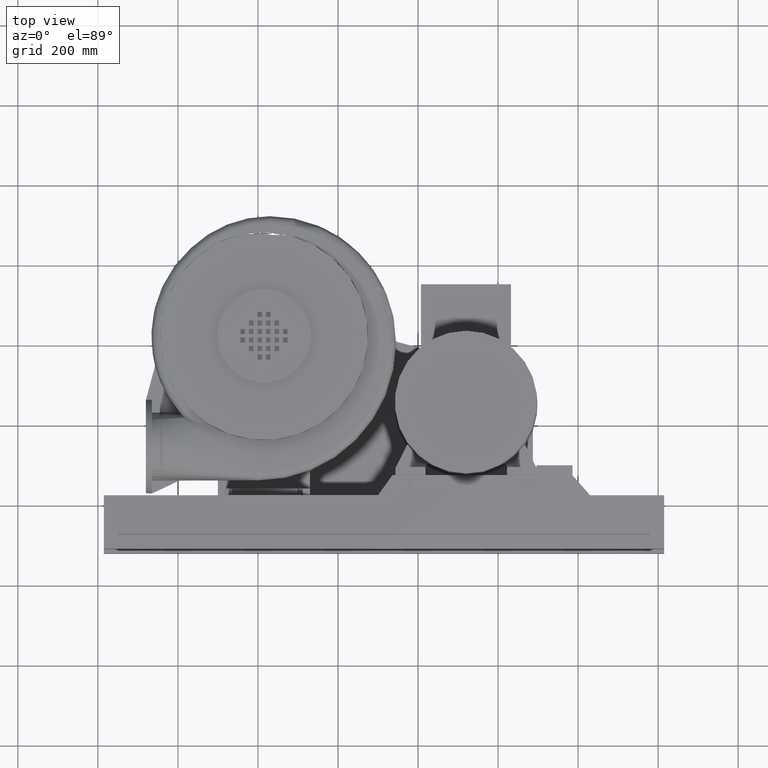
[diagram: clean part render]
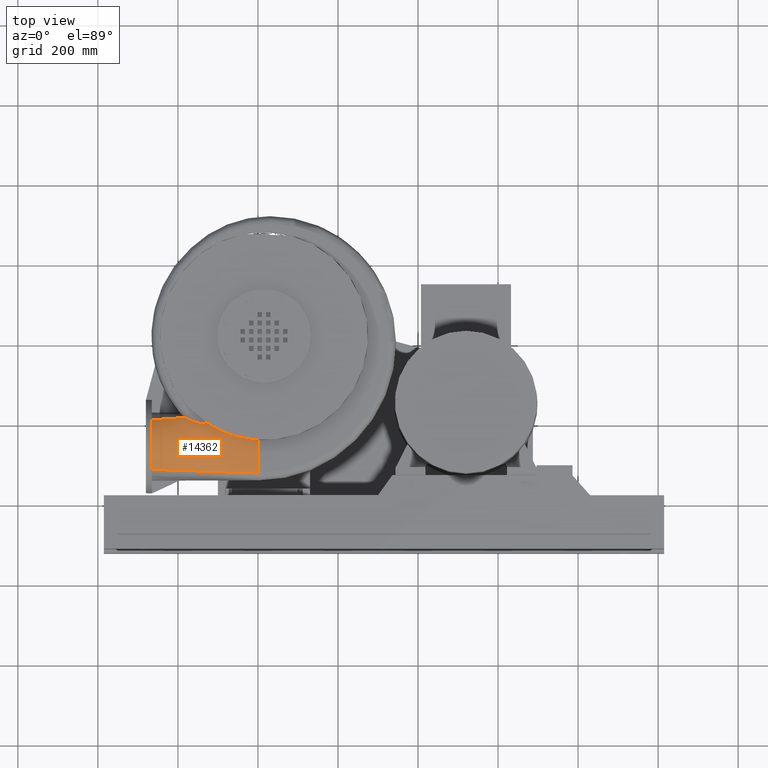
[diagram: same view with one face highlighted and labeled with its STEP entity id]
A machine part, top view. The second image highlights one B-rep face of the part: STEP entity #14362.
In plain terms, the highlighted face is a freeform B-spline surface patch.
Its self-contained STEP definition (entity closure, byte-faithful):
#13641=CARTESIAN_POINT('',(9.372842E-014,-327.00000000000017,67.500000000000043));
#13642=VERTEX_POINT('',#13641);
#13763=CARTESIAN_POINT('',(-182.29518174591624,-188.16894662575038,58.033999099305682));
#13764=VERTEX_POINT('',#13763);
#13765=CARTESIAN_POINT('',(-142.58720379928317,-202.9395720945252,67.500000000000014));
#13766=VERTEX_POINT('',#13765);
#13767=CARTESIAN_POINT('',(-182.29518174591621,-188.16894662575035,58.033999099305689));
#13768=CARTESIAN_POINT('',(-174.82858880499765,-192.86698520567055,62.019479937472013));
#13769=CARTESIAN_POINT('',(-165.8575359455719,-197.02137360786014,64.475752044287859));
#13770=CARTESIAN_POINT('',(-153.57445389169962,-201.28900611731677,66.704578514908832));
#13771=CARTESIAN_POINT('',(-149.20088505081378,-202.44059342568113,67.211587700186456));
#13772=CARTESIAN_POINT('',(-144.65687713610743,-202.92543288885398,67.462846296019464));
#13773=CARTESIAN_POINT('',(-143.60396125265856,-202.98442835631784,67.500000000000014));
#13774=CARTESIAN_POINT('',(-142.58720379928317,-202.93957209452526,67.500000000000014));
#13775=B_SPLINE_CURVE_WITH_KNOTS('',3,(#13767,#13768,#13769,#13770,#13771,#13772,#13773,#13774),.UNSPECIFIED.,.F.,.U.,(4,2,2,4),(0.0,2.904050115608655,4.6215907110657,5.10169561148826),.UNSPECIFIED.);
#13776=EDGE_CURVE('',#13764,#13766,#13775,.T.);
#14076=CARTESIAN_POINT('',(-264.99999999999994,-317.96704114801651,62.167693704561572));
#14077=VERTEX_POINT('',#14076);
#14078=CARTESIAN_POINT('',(9.372842E-014,-327.00000000000017,67.500000000000028));
#14079=CARTESIAN_POINT('',(-88.333333333333258,-323.98901371600562,65.722564568187224));
#14080=CARTESIAN_POINT('',(-176.66666666666654,-320.978027432011,63.945129136374405));
#14081=CARTESIAN_POINT('',(-264.99999999999989,-317.96704114801645,62.167693704561586));
#14082=QUASI_UNIFORM_CURVE('',3,(#14078,#14079,#14080,#14081),.UNSPECIFIED.,.F.,.U.);
#14083=EDGE_CURVE('',#13642,#14077,#14082,.T.);
#14265=CARTESIAN_POINT('',(9.372842E-014,-327.00000000000017,67.500000000000028));
#14266=CARTESIAN_POINT('',(9.300011E-014,-319.76190476190493,67.500000000000028));
#14267=CARTESIAN_POINT('',(9.154348E-014,-305.28571428571439,67.500000000000014));
#14268=CARTESIAN_POINT('',(8.863023E-014,-276.3333333333336,67.500000000000028));
#14269=CARTESIAN_POINT('',(8.498866E-014,-240.14285714285728,67.499999999999972));
#14270=CARTESIAN_POINT('',(8.134709E-014,-203.95238095238111,67.499999999999986));
#14271=CARTESIAN_POINT('',(7.916214E-014,-182.23809523809538,67.499999999999972));
#14272=CARTESIAN_POINT('',(7.843383E-014,-175.00000000000014,67.499999999999972));
#14273=CARTESIAN_POINT('',(-88.333333333333258,-323.98901371600562,65.722564568187224));
#14274=CARTESIAN_POINT('',(-88.333333333333272,-317.54944687346432,67.231483107125101));
#14275=CARTESIAN_POINT('',(-88.333333333333272,-304.3123025340148,69.856827533024614));
#14276=CARTESIAN_POINT('',(-88.333333333333158,-276.8209945623102,73.331094247915559));
#14277=CARTESIAN_POINT('',(-88.3333333333333,-241.36017951769077,73.885987367427532));
#14278=CARTESIAN_POINT('',(-88.333333333333258,-206.86442770575962,69.273037447156483));
#14279=CARTESIAN_POINT('',(-88.333333333333258,-187.60484746216832,64.621745049387982));
#14280=CARTESIAN_POINT('',(-88.333333333333258,-181.38117223286048,62.913134867930218));
#14281=CARTESIAN_POINT('',(-176.66666666666657,-320.978027432011,63.945129136374405));
#14282=CARTESIAN_POINT('',(-176.66666666666657,-315.33392198076331,66.954373453985824));
#14283=CARTESIAN_POINT('',(-176.66666666666654,-303.33933756801292,72.216156439854785));
#14284=CARTESIAN_POINT('',(-176.66666666666674,-277.30791313839848,79.157024220326676));
#14285=CARTESIAN_POINT('',(-176.66666666666654,-242.57524869027446,80.2778410151206));
#14286=CARTESIAN_POINT('',(-176.66666666666663,-209.78050948588418,71.041041789005902));
#14287=CARTESIAN_POINT('',(-176.6666666666666,-192.96540990137993,61.750754341070355));
#14288=CARTESIAN_POINT('',(-176.6666666666666,-187.76234446572079,58.326269735860478));
#14289=CARTESIAN_POINT('',(-264.99999999999994,-317.96704114801645,62.167693704561586));
#14290=CARTESIAN_POINT('',(-264.99999999999994,-313.1214640923227,66.685856561110896));
#14291=CARTESIAN_POINT('',(-264.99999999999989,-302.36592581631334,74.572983972879399));
#14292=CARTESIAN_POINT('',(-265.0,-277.79557436737508,84.988118468242192));
#14293=CARTESIAN_POINT('',(-264.99999999999994,-243.79257106510795,86.663828382548161));
#14294=CARTESIAN_POINT('',(-264.99999999999994,-212.6925562392627,72.814079236162414));
#14295=CARTESIAN_POINT('',(-264.99999999999994,-198.33216212545284,58.872499390458373));
#14296=CARTESIAN_POINT('',(-264.99999999999994,-194.14351669858115,53.739404603790732));
#14297=B_SPLINE_SURFACE_WITH_KNOTS('',3,3,((#14265,#14273,#14281,#14289),(#14266,#14274,#14282,#14290),(#14267,#14275,#14283,#14291),(#14268,#14276,#14284,#14292),(#14269,#14277,#14285,#14293),(#14270,#14278,#14286,#14294),(#14271,#14279,#14287,#14295),(#14272,#14280,#14288,#14296)),.UNSPECIFIED.,.F.,.F.,.F.,(4,1,1,1,1,4),(4,4),(0.0,0.142857142857143,0.285714285714286,0.571428571428571,0.857142857142857,1.0),(0.0,1.0),.UNSPECIFIED.);
#14298=CARTESIAN_POINT('',(8.607027E-014,-244.56694704834834,67.500000000000028));
#14299=VERTEX_POINT('',#14298);
#14300=CARTESIAN_POINT('',(-127.78172414364454,-202.2863991384832,67.499999999999986));
#14301=VERTEX_POINT('',#14300);
#14302=CARTESIAN_POINT('',(8.437695E-014,-244.56694704834834,67.5));
#14303=CARTESIAN_POINT('',(-18.580883653786895,-243.49318454516305,68.671003389665174));
#14304=CARTESIAN_POINT('',(-36.971609783122972,-240.42774912937003,69.834865158579504));
#14305=CARTESIAN_POINT('',(-76.781996045507583,-229.32485276292033,71.519228352197445));
#14306=CARTESIAN_POINT('',(-96.263216289344882,-220.78839352198406,71.728022882932919));
#14307=CARTESIAN_POINT('',(-118.30553655018606,-208.30479742362172,69.267791296990026));
#14308=CARTESIAN_POINT('',(-123.18337488677466,-205.30803435225505,68.496151730617456));
#14309=CARTESIAN_POINT('',(-127.7817241436445,-202.2863991384832,67.499999999999773));
#14310=B_SPLINE_CURVE_WITH_KNOTS('',3,(#14302,#14303,#14304,#14305,#14306,#14307,#14308,#14309),.UNSPECIFIED.,.F.,.U.,(4,2,2,4),(-13.311456556822131,-9.260162004871885,-4.288794529154993,-2.762754502763271),.UNSPECIFIED.);
#14311=EDGE_CURVE('',#14299,#14301,#14310,.T.);
#14312=ORIENTED_EDGE('',*,*,#14311,.T.);
#14313=CARTESIAN_POINT('',(-142.58720379928317,-202.9395720945252,67.500000000000014));
#14314=CARTESIAN_POINT('',(-137.65204391407028,-202.72184777584448,67.5));
#14315=CARTESIAN_POINT('',(-132.71688402885741,-202.50412345716381,67.499999999999986));
#14316=CARTESIAN_POINT('',(-127.78172414364454,-202.2863991384832,67.499999999999986));
#14317=B_SPLINE_CURVE_WITH_KNOTS('',3,(#14313,#14314,#14315,#14316),.UNSPECIFIED.,.F.,.U.,(4,4),(10.601581552592375,12.083569618482359),.UNSPECIFIED.);
#14318=EDGE_CURVE('',#13766,#14301,#14317,.T.);
#14319=ORIENTED_EDGE('',*,*,#14318,.F.);
#14320=ORIENTED_EDGE('',*,*,#13776,.F.);
#14321=CARTESIAN_POINT('',(-264.99999999999994,-194.14351669858118,53.739404603790732));
#14322=VERTEX_POINT('',#14321);
#14323=CARTESIAN_POINT('',(-182.29518174591624,-188.16894662575035,58.033999099305689));
#14324=CARTESIAN_POINT('',(-209.8634544972775,-190.16046998336063,56.602467600800701));
#14325=CARTESIAN_POINT('',(-237.43172724863871,-192.15199334097088,55.17093610229572));
#14326=CARTESIAN_POINT('',(-264.99999999999994,-194.14351669858115,53.739404603790732));
#14327=B_SPLINE_CURVE_WITH_KNOTS('',3,(#14323,#14324,#14325,#14326),.UNSPECIFIED.,.F.,.U.,(4,4),(0.687906346211005,1.0),.UNSPECIFIED.);
#14328=EDGE_CURVE('',#13764,#14322,#14327,.T.);
#14329=ORIENTED_EDGE('',*,*,#14328,.T.);
#14330=CARTESIAN_POINT('',(-264.99999999999994,-260.00000000000011,2.970061E-014));
#14331=DIRECTION('',(-1.0,0.0,0.0));
#14332=DIRECTION('',(0.0,0.0,-1.0));
#14333=AXIS2_PLACEMENT_3D('',#14330,#14331,#14332);
#14334=CIRCLE('',#14333,85.0);
#14335=EDGE_CURVE('',#14077,#14322,#14334,.T.);
#14336=ORIENTED_EDGE('',*,*,#14335,.F.);
#14337=ORIENTED_EDGE('',*,*,#14083,.F.);
#14338=CARTESIAN_POINT('',(9.282014E-014,-317.97330011706003,67.500000000000028));
#14339=VERTEX_POINT('',#14338);
#14340=CARTESIAN_POINT('',(9.512579E-014,-327.00000000000017,67.500000000000057));
#14341=DIRECTION('',(0.0,1.0,0.0));
#14342=VECTOR('',#14341,9.026699882940136);
#14343=LINE('',#14340,#14342);
#14344=EDGE_CURVE('',#13642,#14339,#14343,.T.);
#14345=ORIENTED_EDGE('',*,*,#14344,.T.);
#14346=CARTESIAN_POINT('',(8.881784E-014,-261.37655472199538,67.500000000000028));
#14347=VERTEX_POINT('',#14346);
#14348=CARTESIAN_POINT('',(9.421750E-014,-317.97330011706003,67.500000000000043));
#14349=DIRECTION('',(0.0,1.0,0.0));
#14350=VECTOR('',#14349,56.596745395064659);
#14351=LINE('',#14348,#14350);
#14352=EDGE_CURVE('',#14339,#14347,#14351,.T.);
#14353=ORIENTED_EDGE('',*,*,#14352,.T.);
#14354=CARTESIAN_POINT('',(8.678293E-014,-244.56694704834834,67.500000000000028));
#14355=DIRECTION('',(0.0,-1.0,0.0));
#14356=VECTOR('',#14355,16.809607673647037);
#14357=LINE('',#14354,#14356);
#14358=EDGE_CURVE('',#14299,#14347,#14357,.T.);
#14359=ORIENTED_EDGE('',*,*,#14358,.F.);
#14360=EDGE_LOOP('',(#14312,#14319,#14320,#14329,#14336,#14337,#14345,#14353,#14359));
#14361=FACE_OUTER_BOUND('',#14360,.T.);
#14362=ADVANCED_FACE('',(#14361),#14297,.T.);